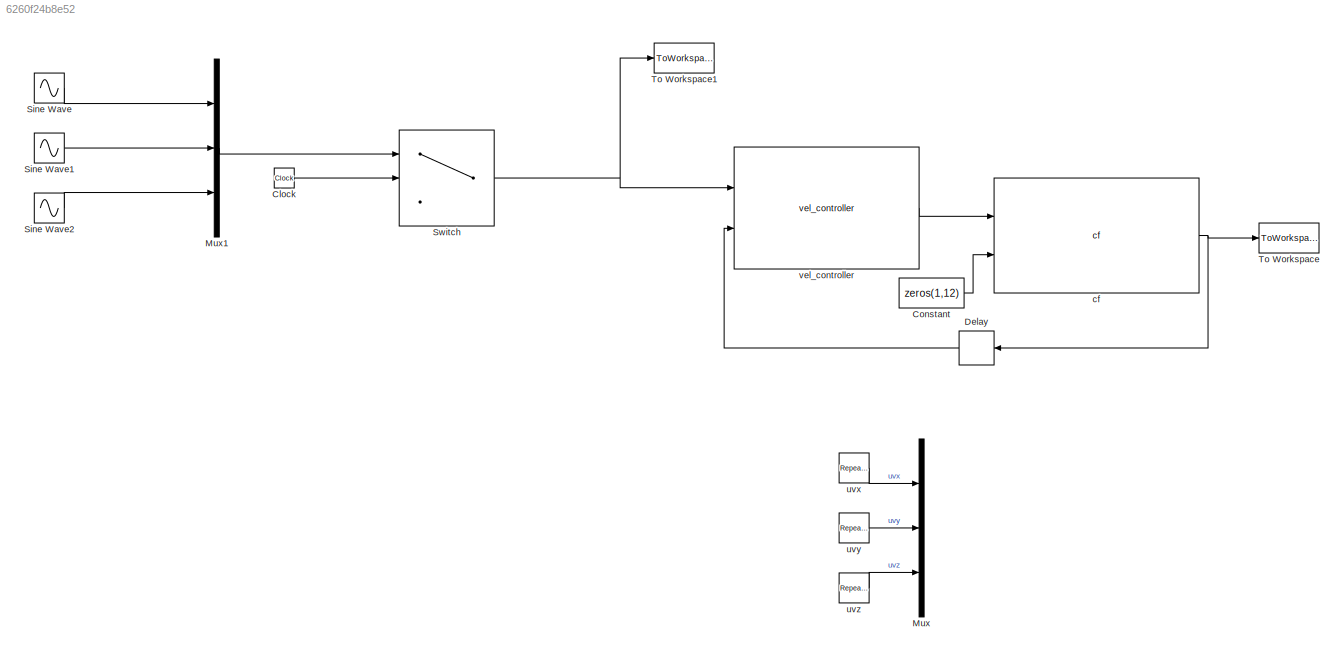
MODEL slx_6260f24b8e52
KIND model
CONFIG AbsTol = auto
CONFIG EnableMultiTasking = off
CONFIG FixedStep = auto
CONFIG MaxStep = auto
CONFIG MinStep = auto
CONFIG RelTol = 1e-3
CONFIG SampleTimeConstraint = Unconstrained
CONFIG Solver = VariableStepAuto
CONFIG SolverName = VariableStepAuto
CONFIG StartTime = 0.0
CONFIG StopTime = 10.0
BLOCK [Clock] Clock
  Decimation = 100
BLOCK [Constant] Constant
  Value = zeros(1,12)
BLOCK [Delay] Delay
  DelayLength = 1
  InputPortMap = u0
  Ports = [1, 1]
BLOCK [Mux] Mux
  Commented = on
  DisplayOption = bar
  Inputs = 3
  Ports = [3, 1]
BLOCK [Mux] Mux1
  DisplayOption = bar
  Inputs = 3
  Ports = [3, 1]
BLOCK [Sin] Sine Wave
  Ports = [0, 1]
  SampleTime = 0
BLOCK [Sin] Sine Wave1
  Ports = [0, 1]
  SampleTime = 0
BLOCK [Sin] Sine Wave2
  Ports = [0, 1]
  SampleTime = 0
BLOCK [Switch] Switch
  Criteria = u2 > Threshold
  InputSameDT = off
  SaturateOnIntegerOverflow = off
  Threshold = 5
BLOCK [ToWorkspace] To Workspace
  FixptAsFi = on
  MaxDataPoints = inf
  Ports = [1]
  SampleTime = -1
  Save2DSignal = 3-D array (concatenate along third dimension)
  SaveFormat = Timeseries
  VariableName = freq_state
BLOCK [ToWorkspace] To Workspace1
  FixptAsFi = on
  MaxDataPoints = inf
  Ports = [1]
  SampleTime = -1
  Save2DSignal = 3-D array (concatenate along third dimension)
  SaveFormat = Timeseries
  VariableName = freq_ref
BLOCK [Reference] cf  REF=cf_lib/cf  (lib defined in slx_a8dafeb2bc56)
  Ports = [2, 1]
  SourceBlock = cf_lib/cf
  SourceType = SubSystem
BLOCK [Reference] uvx  REF=simulink/Sources/Repeating
Sequence
  Commented = on
  Ports = [0, 1]
  SourceBlock = simulink/Sources/Repeating\nSequence
  SourceProductBaseCode = SL
  SourceProductName = Simulink
  SourceType = Repeating table
BLOCK [Reference] uvy  REF=simulink/Sources/Repeating
Sequence
  Commented = on
  Ports = [0, 1]
  SourceBlock = simulink/Sources/Repeating\nSequence
  SourceProductBaseCode = SL
  SourceProductName = Simulink
  SourceType = Repeating table
BLOCK [Reference] uvz  REF=simulink/Sources/Repeating
Sequence
  Commented = on
  Ports = [0, 1]
  SourceBlock = simulink/Sources/Repeating\nSequence
  SourceProductBaseCode = SL
  SourceProductName = Simulink
  SourceType = Repeating table
BLOCK [Reference] vel_controller  REF=vel_controller_lib/vel_controller  (lib defined in slx_bda01cb8c3d0)
  Ports = [2, 1]
  SourceBlock = vel_controller_lib/vel_controller
  SourceType = SubSystem
LINE Clock:1 -> Switch:2
LINE Constant:1 -> cf:2
LINE Delay:1 -> vel_controller:2
LINE Mux1:1 -> Switch:1
LINE Sine Wave1:1 -> Mux1:2
LINE Sine Wave2:1 -> Mux1:3
LINE Sine Wave:1 -> Mux1:1
NET Switch:1 -> To Workspace1:1, vel_controller:1
NET cf:1 -> Delay:1, To Workspace:1
LINE uvx:1 -> Mux:1
LINE uvy:1 -> Mux:2
LINE uvz:1 -> Mux:3
LINE vel_controller:1 -> cf:1
note: NET lines group one-source signal fan-out (src -> all destinations, sorted); 1:1 wires keep LINE
